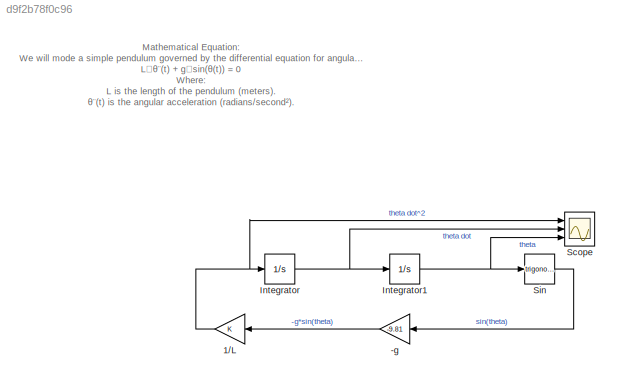
MODEL slx_d9f2b78f0c96
KIND model
CONFIG AbsTol = auto
CONFIG EnableMultiTasking = off
CONFIG FixedStep = auto
CONFIG MaxStep = 1e-3
CONFIG MinStep = auto
CONFIG RelTol = 1e-3
CONFIG SampleTimeConstraint = Unconstrained
CONFIG SolverName = VariableStepAuto
CONFIG StartTime = 0.0
CONFIG StopTime = 10.0
BLOCK [Gain] -g
  Gain = -9.81
BLOCK [Gain] 1//L
BLOCK [Integrator] Integrator
  Ports = [1, 1]
BLOCK [Integrator] Integrator1
  InitialCondition = 40
  Ports = [1, 1]
BLOCK [Scope] Scope
  Floating = off
  NumInputPorts = 3
  Ports = [3]
  ScopeSpecificationString = Simulink.scopes.TimeScopeBlockCfg('CurrentConfiguration', extmgr.ConfigurationSet(extmgr.Configuration('Core','General UI',true),extmgr.Configuration('Core','Source UI',true),extmgr.Configuration('Sources','WiredSimulink',true),extmgr.Configuration('Visuals','Time Domain',true,'SerializedDisplays',{struct('MinYLimReal','-12.2625','MaxYLimReal','12.2625','YLabelReal','','MinYLimMag','0.00000','MaxY...<+2715ch>
BLOCK [Trigonometry] Sin
  Ports = [1, 1]
ANNOTATION (root): M athematical Equation: We will mode a simple pendulum governed by the differential equation for angular displacement θ ( t ): L ⋅ θ ¨( t ) + g ⋅sin( θ ( t )) = 0 Where: L is the length of the pendulum (meters). θ ¨( t ) is the angular acceleration (radians/second²). g is the acceleration due to gravity (9.81 m/s²). θ ( t ) is the angular displacement from the vertical position (radians). L =1 met...<+19ch>
LINE -g:1 -> 1//L:1
NET 1//L:1 -> Integrator:1, Scope:1
NET Integrator1:1 -> Scope:3, Sin:1
NET Integrator:1 -> Integrator1:1, Scope:2
LINE Sin:1 -> -g:1
note: NET lines group one-source signal fan-out (src -> all destinations, sorted); 1:1 wires keep LINE
